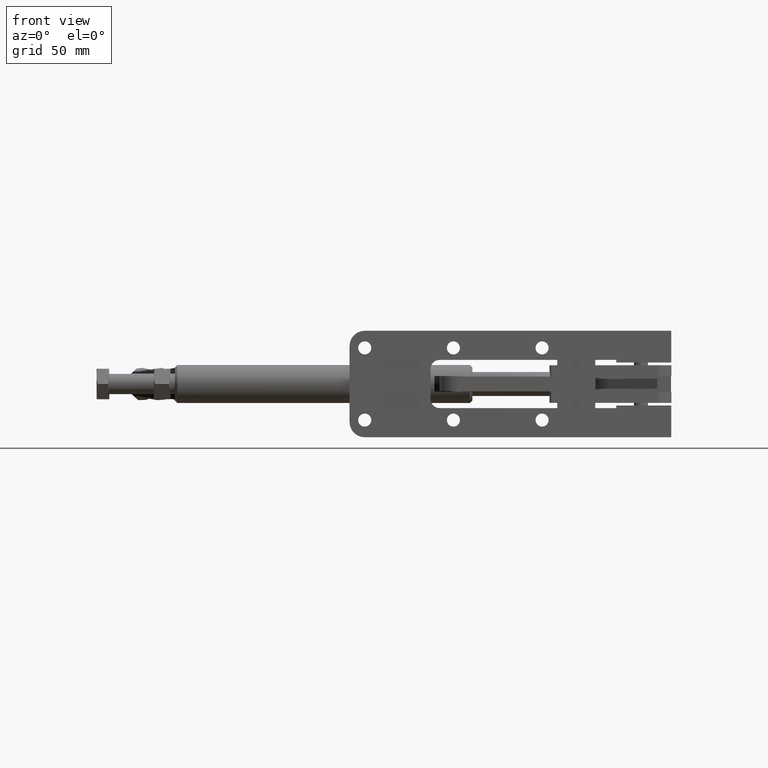
[diagram: clean part render]
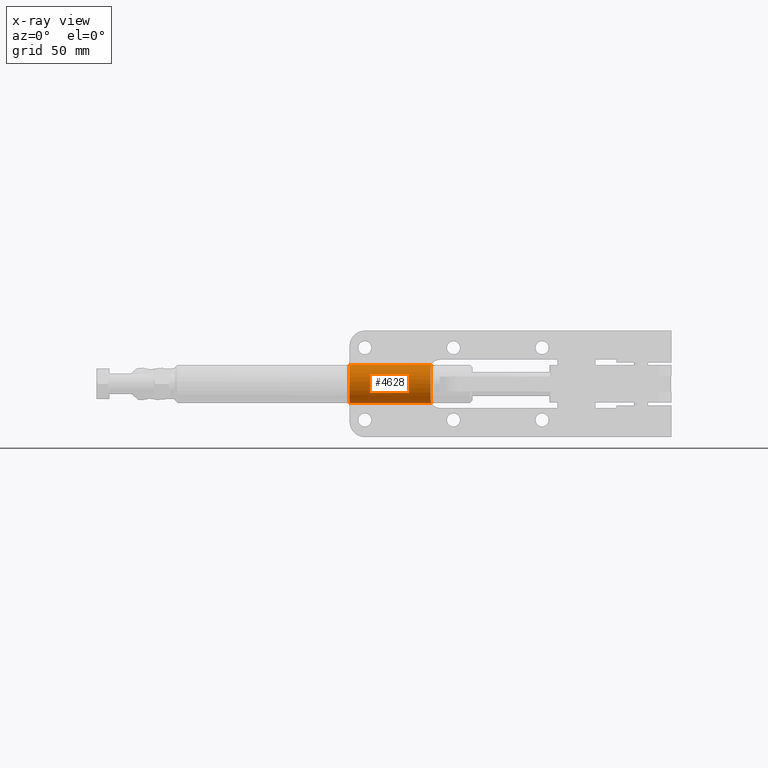
[diagram: x-ray — body ghosted, one internal face saturated and labeled with its STEP entity id]
A machine part, front view, then the same camera in x-ray: the body is ghosted and one INTERNAL B-rep face — a face not visible from any outside direction — is saturated and labeled: STEP entity #4628.
In plain terms, the highlighted cylindrical surface (edge-blend (fillet) strip) has radius 15 mm, axis along (1, 0, 0).
Its self-contained STEP definition (entity closure, byte-faithful):
#74 = EDGE_CURVE ( 'NONE', #4869, #5120, #3093, .T. ) ;
#459 = CARTESIAN_POINT ( 'NONE',  ( -62.36285789067657200, 27.38363314968007200, 14.91810470260739200 ) ) ;
#536 = CARTESIAN_POINT ( 'NONE',  ( -62.35679800540726300, 27.38586821894934400, -14.93441460901527100 ) ) ;
#651 = EDGE_CURVE ( 'NONE', #5120, #4184, #6313, .T. ) ;
#972 = CARTESIAN_POINT ( 'NONE',  ( -62.32455532033676300, 28.59428441387622000, 15.00000000000000200 ) ) ;
#1044 = CARTESIAN_POINT ( 'NONE',  ( -62.47506033169704400, 25.80651567674612000, -14.66162548204740900 ) ) ;
#1173 = CARTESIAN_POINT ( 'NONE',  ( -127.0000000000000300, 28.99999999999999600, -15.00000000000000000 ) ) ;
#1310 = DIRECTION ( 'NONE',  ( 1.000000000000000000, 0.0000000000000000000, 0.0000000000000000000 ) ) ;
#1329 = VECTOR ( 'NONE', #2736, 1000.000000000000000 ) ;
#1340 = VERTEX_POINT ( 'NONE', #6117 ) ;
#1402 = CARTESIAN_POINT ( 'NONE',  ( -127.0000000000000300, 29.00000000000000000, 15.00000000000000000 ) ) ;
#1568 = CARTESIAN_POINT ( 'NONE',  ( -62.59263984082734600, 24.63643475730545900, -14.35696262555290100 ) ) ;
#1912 = ORIENTED_EDGE ( 'NONE', *, *, #6385, .F. ) ;
#2000 = CARTESIAN_POINT ( 'NONE',  ( -62.32455532033677100, 28.99999999999999600, -15.00000000000000000 ) ) ;
#2014 = CIRCLE ( 'NONE', #3197, 15.00000000000000000 ) ;
#2034 = CARTESIAN_POINT ( 'NONE',  ( -62.84565468981308100, 22.39610657541057400, 13.47400212283225500 ) ) ;
#2120 = CARTESIAN_POINT ( 'NONE',  ( -62.81081991418735600, 22.75117977462785700, -13.65985794557168400 ) ) ;
#2122 = ORIENTED_EDGE ( 'NONE', *, *, #651, .F. ) ;
#2526 = CARTESIAN_POINT ( 'NONE',  ( -63.00000000000000000, 20.65211901692955700, 12.48908926269716900 ) ) ;
#2551 = CARTESIAN_POINT ( 'NONE',  ( -62.72211048782084900, 23.49607445540744200, 13.95950346226440600 ) ) ;
#2641 = CARTESIAN_POINT ( 'NONE',  ( -63.00000000000011400, 20.65341375831065900, -12.49006031873301100 ) ) ;
#2735 = LINE ( 'NONE', #3769, #1329 ) ;
#2736 = DIRECTION ( 'NONE',  ( 1.000000000000000000, -0.0000000000000000000, -0.0000000000000000000 ) ) ;
#2842 = CARTESIAN_POINT ( 'NONE',  ( -63.00000000000000000, 19.99999999999998200, 11.99999999999998800 ) ) ;
#2942 = DIRECTION ( 'NONE',  ( -1.000000000000000000, 0.0000000000000000000, 0.0000000000000000000 ) ) ;
#3068 = CARTESIAN_POINT ( 'NONE',  ( -62.54942437342832300, 25.02223340784740200, 14.48546069937580900 ) ) ;
#3093 = CIRCLE ( 'NONE', #6581, 15.00000000000000000 ) ;
#3136 = B_SPLINE_CURVE_WITH_KNOTS ( 'NONE', 3,
 ( #2000, #3140, #536, #4204, #1044, #4743, #1568, #5275, #2120, #5817, #2641, #6328 ),
 .UNSPECIFIED., .F., .F.,
 ( 4, 2, 2, 2, 2, 4 ),
 ( 0.009639434367903947400, 0.01205311407713004400, 0.01325995393174308700, 0.01446679378635613200, 0.01688047349558222800, 0.01929415320480832400 ),
 .UNSPECIFIED. ) ;
#3140 = CARTESIAN_POINT ( 'NONE',  ( -62.32455532033679200, 28.18728220717649400, -15.00000000000000200 ) ) ;
#3194 = EDGE_LOOP ( 'NONE', ( #3944, #4224, #1912, #4175, #4277, #2122 ) ) ;
#3197 = AXIS2_PLACEMENT_3D ( 'NONE', #6100, #2942, #6631 ) ;
#3345 = VECTOR ( 'NONE', #3958, 1000.000000000000000 ) ;
#3584 = CARTESIAN_POINT ( 'NONE',  ( -63.00000000000000000, 20.00000000000001100, -12.00000000000001100 ) ) ;
#3599 = CARTESIAN_POINT ( 'NONE',  ( -62.38522450638453200, 26.98523729263343200, 14.86946637762435800 ) ) ;
#3748 = CARTESIAN_POINT ( 'NONE',  ( -127.0000000000000300, 28.99999999999999600, 0.0000000000000000000 ) ) ;
#3769 = CARTESIAN_POINT ( 'NONE',  ( -127.0000000000000300, 29.00000000000000000, 15.00000000000000000 ) ) ;
#3841 = B_SPLINE_CURVE_WITH_KNOTS ( 'NONE', 3,
 ( #6218, #2526, #5183, #2034, #5717, #2551, #6238, #3068, #6754, #3599, #459, #4121, #972, #4666 ),
 .UNSPECIFIED., .F., .F.,
 ( 4, 2, 2, 2, 2, 2, 4 ),
 ( 0.0000000000000000000, 0.002409858591976009400, 0.003614787887964013000, 0.004819717183952016200, 0.007229575775928010400, 0.008434505071916002800, 0.009639434367903994300 ),
 .UNSPECIFIED. ) ;
#3886 = CYLINDRICAL_SURFACE ( 'NONE', #5548, 15.00000000000000000 ) ;
#3944 = ORIENTED_EDGE ( 'NONE', *, *, #74, .F. ) ;
#3958 = DIRECTION ( 'NONE',  ( 1.000000000000000000, -0.0000000000000000000, -0.0000000000000000000 ) ) ;
#4121 = CARTESIAN_POINT ( 'NONE',  ( -62.33251214665462200, 28.18718610124076900, 14.98338490724822100 ) ) ;
#4175 = ORIENTED_EDGE ( 'NONE', *, *, #6221, .F. ) ;
#4184 = VERTEX_POINT ( 'NONE', #5794 ) ;
#4204 = CARTESIAN_POINT ( 'NONE',  ( -62.44112590956618900, 26.19939602643792800, -14.74168096464612500 ) ) ;
#4224 = ORIENTED_EDGE ( 'NONE', *, *, #4334, .T. ) ;
#4277 = ORIENTED_EDGE ( 'NONE', *, *, #4566, .F. ) ;
#4295 = DIRECTION ( 'NONE',  ( 0.0000000000000000000, 0.0000000000000000000, -1.000000000000000000 ) ) ;
#4334 = EDGE_CURVE ( 'NONE', #4869, #1340, #2735, .T. ) ;
#4447 = VERTEX_POINT ( 'NONE', #3584 ) ;
#4470 = CARTESIAN_POINT ( 'NONE',  ( -127.0000000000000300, 28.99999999999999600, 0.0000000000000000000 ) ) ;
#4566 = EDGE_CURVE ( 'NONE', #4184, #4447, #3136, .T. ) ;
#4628 = ADVANCED_FACE ( 'NONE', ( #6689 ), #3886, .F. ) ;
#4666 = CARTESIAN_POINT ( 'NONE',  ( -62.32455532033676300, 29.00000000000000000, 15.00000000000000000 ) ) ;
#4743 = CARTESIAN_POINT ( 'NONE',  ( -62.55073049743219100, 25.02580091094479900, -14.46953162680958500 ) ) ;
#4869 = VERTEX_POINT ( 'NONE', #1402 ) ;
#5019 = DIRECTION ( 'NONE',  ( 0.0000000000000000000, 0.0000000000000000000, -1.000000000000000000 ) ) ;
#5120 = VERTEX_POINT ( 'NONE', #1173 ) ;
#5183 = CARTESIAN_POINT ( 'NONE',  ( -62.94993810252569200, 21.33256736949806500, 12.91708338342712600 ) ) ;
#5202 = VERTEX_POINT ( 'NONE', #2842 ) ;
#5275 = CARTESIAN_POINT ( 'NONE',  ( -62.72142896051632700, 23.48720555289532500, -13.97359678891125700 ) ) ;
#5548 = AXIS2_PLACEMENT_3D ( 'NONE', #3748, #5879, #4295 ) ;
#5717 = CARTESIAN_POINT ( 'NONE',  ( -62.80582174677565600, 22.75780085297587300, 13.64536123091952300 ) ) ;
#5794 = CARTESIAN_POINT ( 'NONE',  ( -62.32455532033677100, 28.99999999999999600, -15.00000000000000000 ) ) ;
#5817 = CARTESIAN_POINT ( 'NONE',  ( -62.94978939697655600, 21.33427451521781700, -12.91805426889742300 ) ) ;
#5879 = DIRECTION ( 'NONE',  ( 1.000000000000000000, -0.0000000000000000000, -0.0000000000000000000 ) ) ;
#6063 = CARTESIAN_POINT ( 'NONE',  ( -127.0000000000000300, 28.99999999999999600, -15.00000000000000000 ) ) ;
#6100 = CARTESIAN_POINT ( 'NONE',  ( -63.00000000000000000, 28.99999999999999600, 0.0000000000000000000 ) ) ;
#6117 = CARTESIAN_POINT ( 'NONE',  ( -62.32455532033676300, 29.00000000000000000, 15.00000000000000000 ) ) ;
#6218 = CARTESIAN_POINT ( 'NONE',  ( -63.00000000000000000, 19.99999999999998200, 11.99999999999998800 ) ) ;
#6221 = EDGE_CURVE ( 'NONE', #4447, #5202, #2014, .T. ) ;
#6238 = CARTESIAN_POINT ( 'NONE',  ( -62.67808485716015800, 23.87389416235347300, 14.10268905652209000 ) ) ;
#6313 = LINE ( 'NONE', #6063, #3345 ) ;
#6328 = CARTESIAN_POINT ( 'NONE',  ( -63.00000000000000000, 20.00000000000001100, -12.00000000000001100 ) ) ;
#6385 = EDGE_CURVE ( 'NONE', #5202, #1340, #3841, .T. ) ;
#6581 = AXIS2_PLACEMENT_3D ( 'NONE', #4470, #1310, #5019 ) ;
#6631 = DIRECTION ( 'NONE',  ( 0.0000000000000000000, 0.0000000000000000000, 1.000000000000000000 ) ) ;
#6689 = FACE_OUTER_BOUND ( 'NONE', #3194, .T. ) ;
#6754 = CARTESIAN_POINT ( 'NONE',  ( -62.46962988508051500, 25.79971936136113800, 14.67649141733603300 ) ) ;